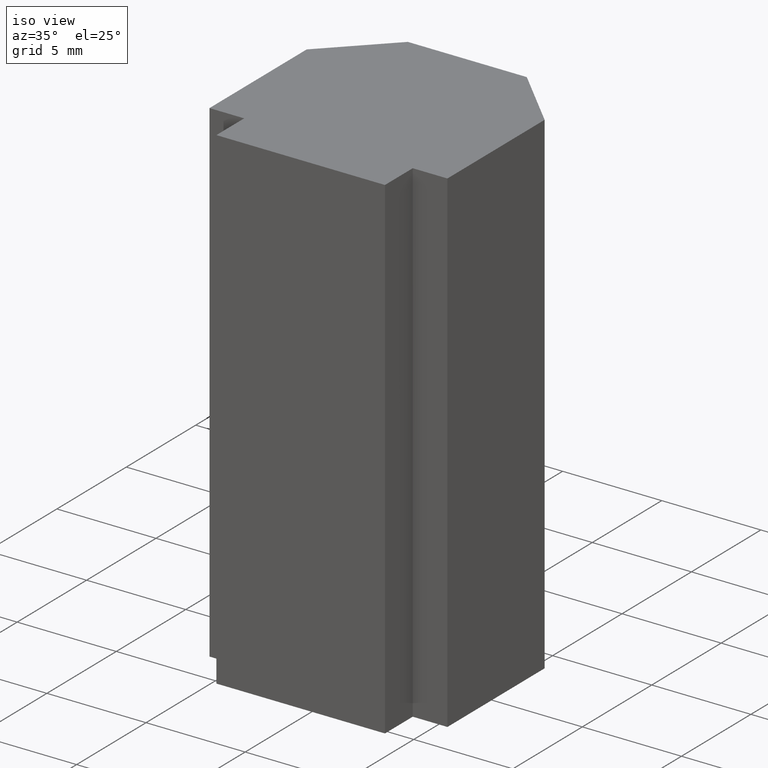
[diagram: clean part render]
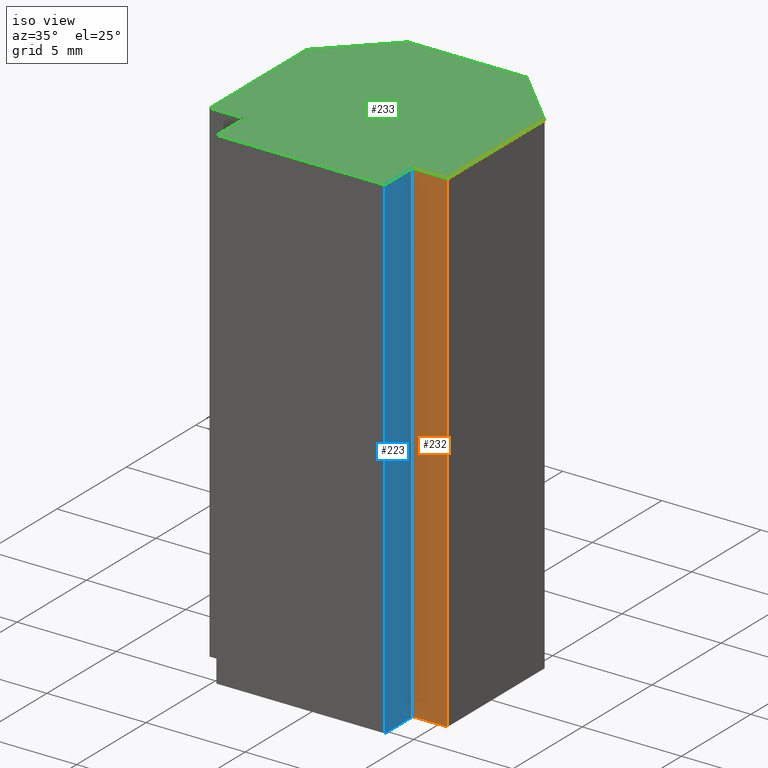
[diagram: same view with three faces highlighted in distinct colors, each labeled with its STEP entity id]
A machine part, iso view with three faces highlighted in distinct colors.
Their STEP definitions:

[orange] entity #232 — the highlighted planar face has unit normal (0, -1, 0).
#26=FACE_OUTER_BOUND('',#38,.T.);
#38=EDGE_LOOP('',(#196,#197,#198,#199));
#41=LINE('',#331,#71);
#52=LINE('',#352,#82);
#68=LINE('',#384,#98);
#69=LINE('',#386,#99);
#71=VECTOR('',#274,10.);
#82=VECTOR('',#287,10.);
#98=VECTOR('',#319,10.);
#99=VECTOR('',#322,10.);
#100=VERTEX_POINT('',#327);
#102=VERTEX_POINT('',#330);
#110=VERTEX_POINT('',#348);
#119=VERTEX_POINT('',#382);
#121=EDGE_CURVE('',#102,#100,#41,.T.);
#132=EDGE_CURVE('',#110,#102,#52,.T.);
#148=EDGE_CURVE('',#100,#119,#68,.T.);
#149=EDGE_CURVE('',#119,#110,#69,.T.);
#196=ORIENTED_EDGE('',*,*,#149,.T.);
#197=ORIENTED_EDGE('',*,*,#132,.T.);
#198=ORIENTED_EDGE('',*,*,#121,.T.);
#199=ORIENTED_EDGE('',*,*,#148,.T.);
#220=PLANE('',#267);
#232=ADVANCED_FACE('',(#26),#220,.T.);
#267=AXIS2_PLACEMENT_3D('',#385,#320,#321);
#274=DIRECTION('',(1.,0.,0.));
#287=DIRECTION('',(0.,0.,-1.));
#319=DIRECTION('',(0.,0.,1.));
#320=DIRECTION('center_axis',(0.,-1.,0.));
#321=DIRECTION('ref_axis',(0.,0.,-1.));
#322=DIRECTION('',(-1.,0.,0.));
#327=CARTESIAN_POINT('',(6.,-4.,-12.5));
#330=CARTESIAN_POINT('',(4.25,-4.,-12.5));
#331=CARTESIAN_POINT('',(6.,-4.,-12.5));
#348=CARTESIAN_POINT('',(4.25,-4.,12.5));
#352=CARTESIAN_POINT('',(4.25,-4.,0.));
#382=CARTESIAN_POINT('',(6.,-4.,12.5));
#384=CARTESIAN_POINT('',(6.,-4.,0.));
#385=CARTESIAN_POINT('Origin',(6.,-4.,0.));
#386=CARTESIAN_POINT('',(6.,-4.,12.5));

[blue] entity #223 — the highlighted planar face has unit normal (1, -0, 0).
#17=FACE_OUTER_BOUND('',#29,.T.);
#29=EDGE_LOOP('',(#160,#161,#162,#163));
#42=LINE('',#333,#72);
#50=LINE('',#350,#80);
#51=LINE('',#351,#81);
#52=LINE('',#352,#82);
#72=VECTOR('',#275,10.);
#80=VECTOR('',#285,10.);
#81=VECTOR('',#286,10.);
#82=VECTOR('',#287,10.);
#102=VERTEX_POINT('',#330);
#103=VERTEX_POINT('',#332);
#110=VERTEX_POINT('',#348);
#111=VERTEX_POINT('',#349);
#122=EDGE_CURVE('',#103,#102,#42,.T.);
#130=EDGE_CURVE('',#110,#111,#50,.T.);
#131=EDGE_CURVE('',#111,#103,#51,.T.);
#132=EDGE_CURVE('',#110,#102,#52,.T.);
#160=ORIENTED_EDGE('',*,*,#130,.T.);
#161=ORIENTED_EDGE('',*,*,#131,.T.);
#162=ORIENTED_EDGE('',*,*,#122,.T.);
#163=ORIENTED_EDGE('',*,*,#132,.F.);
#211=PLANE('',#258);
#223=ADVANCED_FACE('',(#17),#211,.T.);
#258=AXIS2_PLACEMENT_3D('',#347,#283,#284);
#275=DIRECTION('',(2.77555756156289E-16,1.,0.));
#283=DIRECTION('center_axis',(1.,-2.77555756156289E-16,0.));
#284=DIRECTION('ref_axis',(0.,0.,-1.));
#285=DIRECTION('',(-2.77555756156289E-16,-1.,0.));
#286=DIRECTION('',(0.,0.,-1.));
#287=DIRECTION('',(0.,0.,-1.));
#330=CARTESIAN_POINT('',(4.25,-4.,-12.5));
#332=CARTESIAN_POINT('',(4.25,-6.,-12.5));
#333=CARTESIAN_POINT('',(4.25,-4.,-12.5));
#347=CARTESIAN_POINT('Origin',(4.25,-4.,0.));
#348=CARTESIAN_POINT('',(4.25,-4.,12.5));
#349=CARTESIAN_POINT('',(4.25,-6.,12.5));
#350=CARTESIAN_POINT('',(4.25,-4.,12.5));
#351=CARTESIAN_POINT('',(4.25,-6.,0.));
#352=CARTESIAN_POINT('',(4.25,-4.,0.));

[green] entity #233 — the highlighted planar face has unit normal (0, 0, 1).
#27=FACE_OUTER_BOUND('',#39,.T.);
#39=EDGE_LOOP('',(#200,#201,#202,#203,#204,#205,#206,#207,#208,#209));
#50=LINE('',#350,#80);
#53=LINE('',#355,#83);
#55=LINE('',#359,#85);
#57=LINE('',#363,#87);
#59=LINE('',#367,#89);
#61=LINE('',#371,#91);
#63=LINE('',#375,#93);
#65=LINE('',#379,#95);
#67=LINE('',#383,#97);
#69=LINE('',#386,#99);
#80=VECTOR('',#285,10.);
#83=VECTOR('',#290,10.);
#85=VECTOR('',#294,10.);
#87=VECTOR('',#298,10.);
#89=VECTOR('',#302,10.);
#91=VECTOR('',#306,10.);
#93=VECTOR('',#310,10.);
#95=VECTOR('',#314,10.);
#97=VECTOR('',#318,10.);
#99=VECTOR('',#322,10.);
#110=VERTEX_POINT('',#348);
#111=VERTEX_POINT('',#349);
#112=VERTEX_POINT('',#354);
#113=VERTEX_POINT('',#358);
#114=VERTEX_POINT('',#362);
#115=VERTEX_POINT('',#366);
#116=VERTEX_POINT('',#370);
#117=VERTEX_POINT('',#374);
#118=VERTEX_POINT('',#378);
#119=VERTEX_POINT('',#382);
#130=EDGE_CURVE('',#110,#111,#50,.T.);
#133=EDGE_CURVE('',#111,#112,#53,.T.);
#135=EDGE_CURVE('',#112,#113,#55,.T.);
#137=EDGE_CURVE('',#113,#114,#57,.T.);
#139=EDGE_CURVE('',#114,#115,#59,.T.);
#141=EDGE_CURVE('',#115,#116,#61,.T.);
#143=EDGE_CURVE('',#116,#117,#63,.T.);
#145=EDGE_CURVE('',#117,#118,#65,.T.);
#147=EDGE_CURVE('',#118,#119,#67,.T.);
#149=EDGE_CURVE('',#119,#110,#69,.T.);
#200=ORIENTED_EDGE('',*,*,#130,.F.);
#201=ORIENTED_EDGE('',*,*,#149,.F.);
#202=ORIENTED_EDGE('',*,*,#147,.F.);
#203=ORIENTED_EDGE('',*,*,#145,.F.);
#204=ORIENTED_EDGE('',*,*,#143,.F.);
#205=ORIENTED_EDGE('',*,*,#141,.F.);
#206=ORIENTED_EDGE('',*,*,#139,.F.);
#207=ORIENTED_EDGE('',*,*,#137,.F.);
#208=ORIENTED_EDGE('',*,*,#135,.F.);
#209=ORIENTED_EDGE('',*,*,#133,.F.);
#221=PLANE('',#268);
#233=ADVANCED_FACE('',(#27),#221,.T.);
#268=AXIS2_PLACEMENT_3D('',#387,#323,#324);
#285=DIRECTION('',(-2.77555756156289E-16,-1.,0.));
#290=DIRECTION('',(-1.,0.,0.));
#294=DIRECTION('',(-2.77555756156289E-16,1.,0.));
#298=DIRECTION('',(-1.,0.,0.));
#302=DIRECTION('',(0.,1.,0.));
#306=DIRECTION('',(0.707106781186548,0.707106781186548,0.));
#310=DIRECTION('',(1.,0.,0.));
#314=DIRECTION('',(0.707106781186548,-0.707106781186548,0.));
#318=DIRECTION('',(0.,-1.,0.));
#322=DIRECTION('',(-1.,0.,0.));
#323=DIRECTION('center_axis',(0.,0.,1.));
#324=DIRECTION('ref_axis',(1.,0.,0.));
#348=CARTESIAN_POINT('',(4.25,-4.,12.5));
#349=CARTESIAN_POINT('',(4.25,-6.,12.5));
#350=CARTESIAN_POINT('',(4.25,-4.,12.5));
#354=CARTESIAN_POINT('',(-4.25,-6.,12.5));
#355=CARTESIAN_POINT('',(4.25,-6.,12.5));
#358=CARTESIAN_POINT('',(-4.25,-4.,12.5));
#359=CARTESIAN_POINT('',(-4.25,-6.,12.5));
#362=CARTESIAN_POINT('',(-6.,-4.,12.5));
#363=CARTESIAN_POINT('',(-4.25,-4.,12.5));
#366=CARTESIAN_POINT('',(-6.,3.,12.5));
#367=CARTESIAN_POINT('',(-6.,-4.,12.5));
#370=CARTESIAN_POINT('',(-3.,6.00000000000001,12.5));
#371=CARTESIAN_POINT('',(-6.,3.,12.5));
#374=CARTESIAN_POINT('',(3.,6.00000000000001,12.5));
#375=CARTESIAN_POINT('',(-3.,6.00000000000001,12.5));
#378=CARTESIAN_POINT('',(6.,3.,12.5));
#379=CARTESIAN_POINT('',(3.,6.00000000000001,12.5));
#382=CARTESIAN_POINT('',(6.,-4.,12.5));
#383=CARTESIAN_POINT('',(6.,3.,12.5));
#386=CARTESIAN_POINT('',(6.,-4.,12.5));
#387=CARTESIAN_POINT('Origin',(1.38777878078145E-16,-0.400497271581692,
12.5));